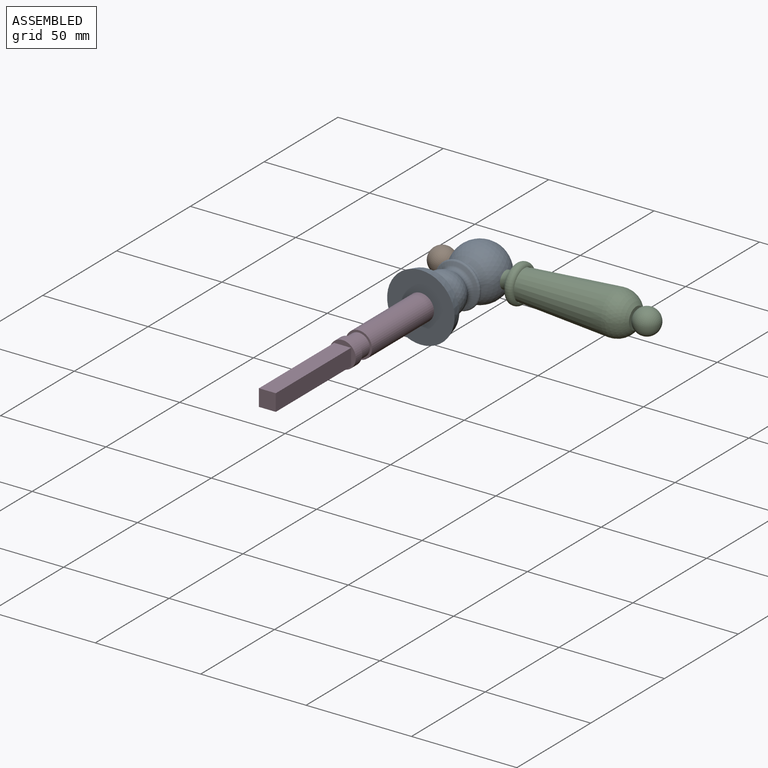
[diagram: assembled view]
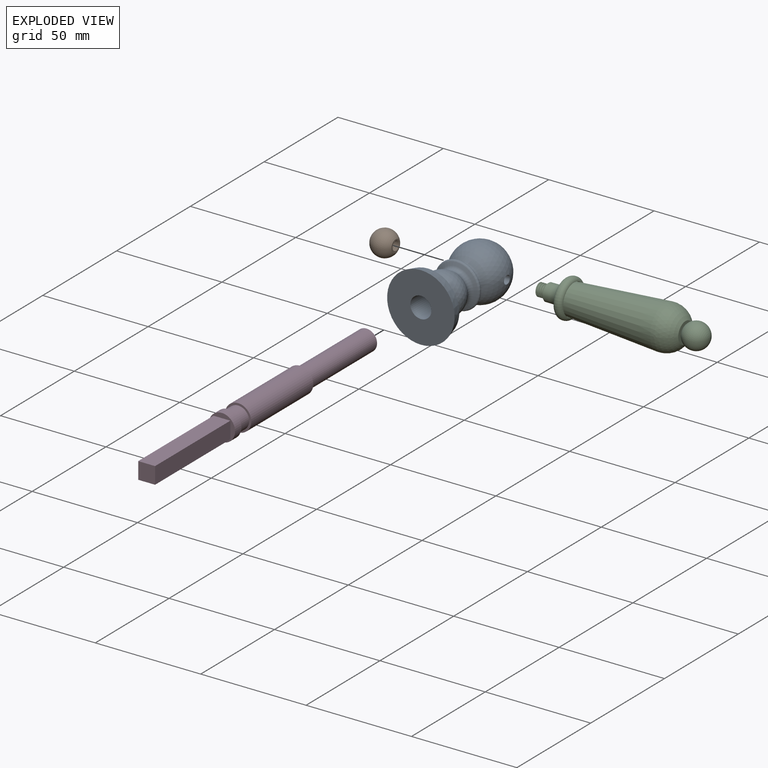
[diagram: exploded view]
GUIDED TOUR — MATED ASSEMBLY WITH SUBASSEMBLIES (Onshape document 96c283c17bb7d6d4dfa393ef, AutoMate assembly 96c283c17bb7d6d4dfa393ef_83c5de9c56ec6fb11143a300_c1f0d941cd1d08f84e31cca8_default)

This assembly has 7 component occurrences arranged in 4 top-level units: 3 individual components plus 1 subassembly (S0). The tour has two levels: first the top level, where each subassembly is treated as one rigid unit; then each subassembly is toured internally in its own section (nesting deeper than one subassembly level is flattened into its subassembly's section).

Components are labeled P0..P6 across the whole record; subassembly units are labeled S0..S0. A mate is a constraint between two units; its type names the relative motion it leaves free:
  FASTENED — locks the two components together rigidly (no relative motion).
Axis/direction vectors are unit vectors and 'through' points are millimeter coordinates, both in the assembly's world frame.

TOP-LEVEL MATES (between units; each subassembly's internal mates are listed in its own section)
  1. FASTENED "Fastened 4": P0 <-> P1, direction (1.000, 0.000, 0.000) through (-12.85, 82.00, 0.00) mm
  2. FASTENED "Fastened 2": P4 <-> P0, direction (0.000, 1.000, 0.000) through (0.00, 42.00, 0.00) mm
  3. FASTENED "Fastened 1": S0 <-> P0, direction (-1.000, 0.000, 0.000) through (12.85, 82.00, 0.00) mm

TOP-LEVEL ASSEMBLY ORDER
  1. P0 — the base component [order heuristic]
  2. S0 — core [order heuristic]
  3. P4 — core [order heuristic]
  4. P1 [order verified]
Order-tag legend:
  [order verified] — this step's position reverses a verified removal order: the component was checked to insert without passing through the ones already placed.
  [order heuristic] — the first 3 components form the assembly's core: parts whose collision-free extraction could not be verified, listed in mate-graph order.

Of the 7 component occurrences, 1 carries the full construction recipe — the FeatureScript program that regenerates the part's solid from scratch; the rest are supplied as boundary geometry only. Each toured unit is shown spotlighted twice — assembled, then exploded with a leader line back to its socket (green = recipe-attached component, orange = geometry-only, blue = subassembly unit; the rest desaturated gray).
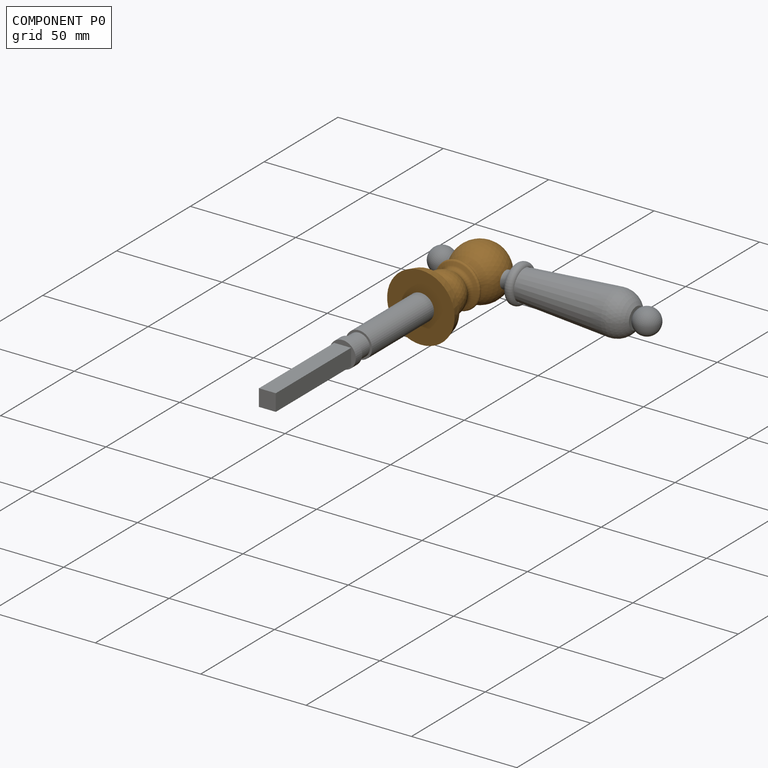
[diagram: component P0 — assembled]
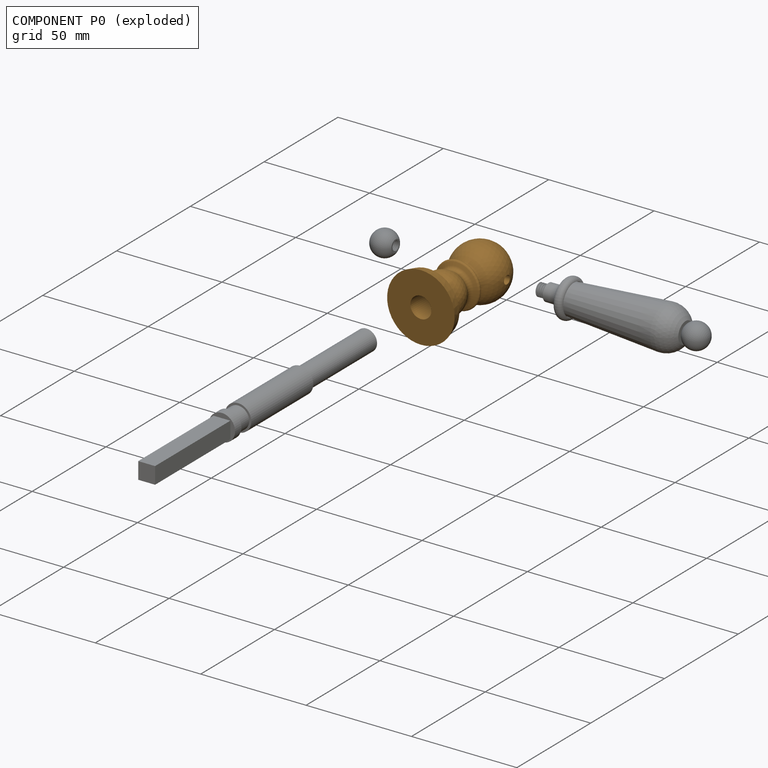
[diagram: component P0 — exploded]
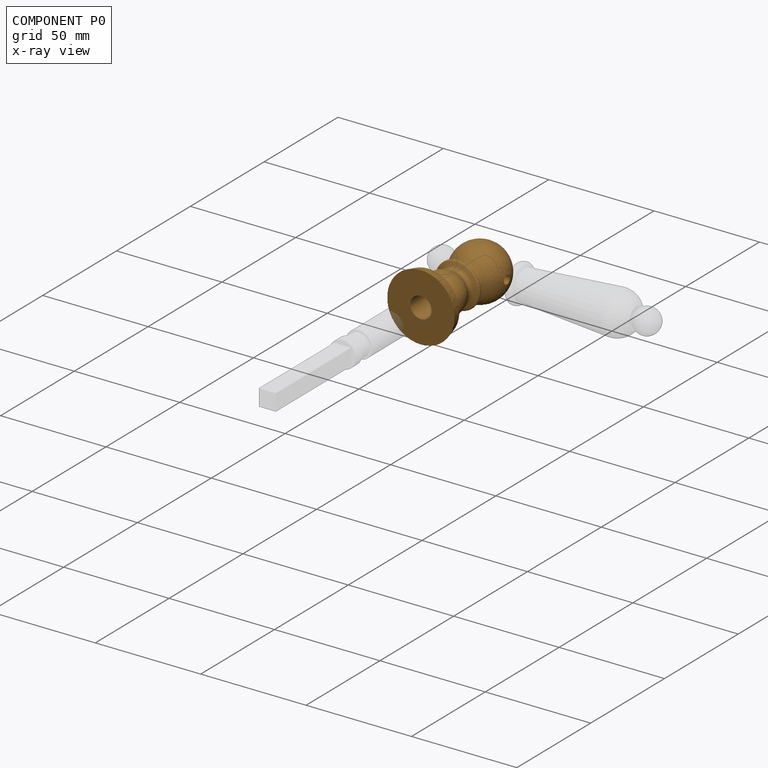
[diagram: component P0 — x-ray view]
COMPONENT P0 — geometry summary (no construction recipe available for this part):
  bounding box: 54.0 x 32.0 x 32.0 mm
  B-rep topology: 1 solid, 17 faces, 72 edges
  volume: 14979 mm^3 (27% of its bounding box)
  symmetry: 2-fold rotationally symmetric about the x axis; mirror-symmetric across its y mid-plane, z mid-plane
Held by: FASTENED mate "Fastened 4" to P1; FASTENED mate "Fastened 2" to P4; FASTENED mate "Fastened 1" to P2.
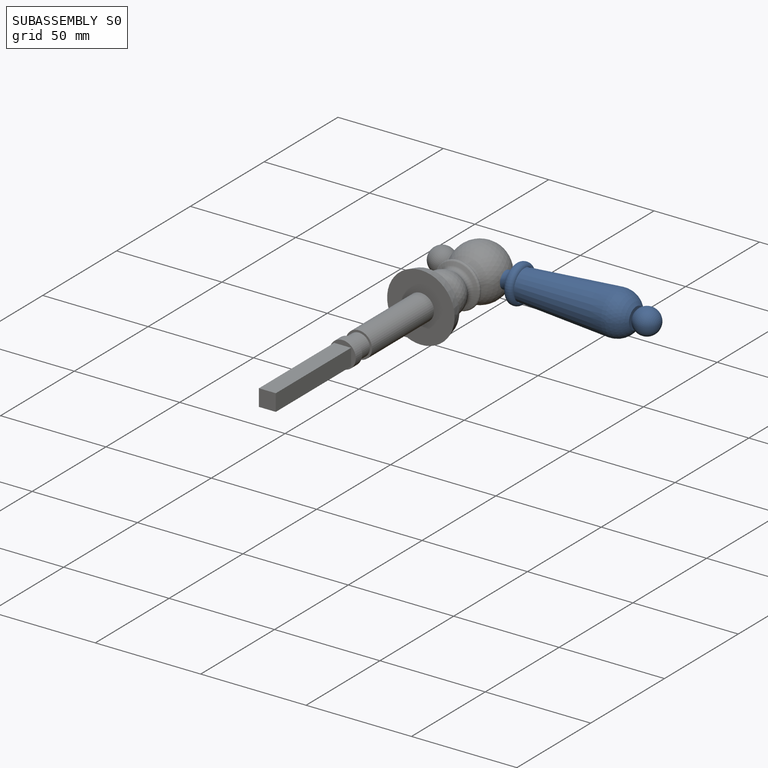
[diagram: subassembly S0 — assembled]
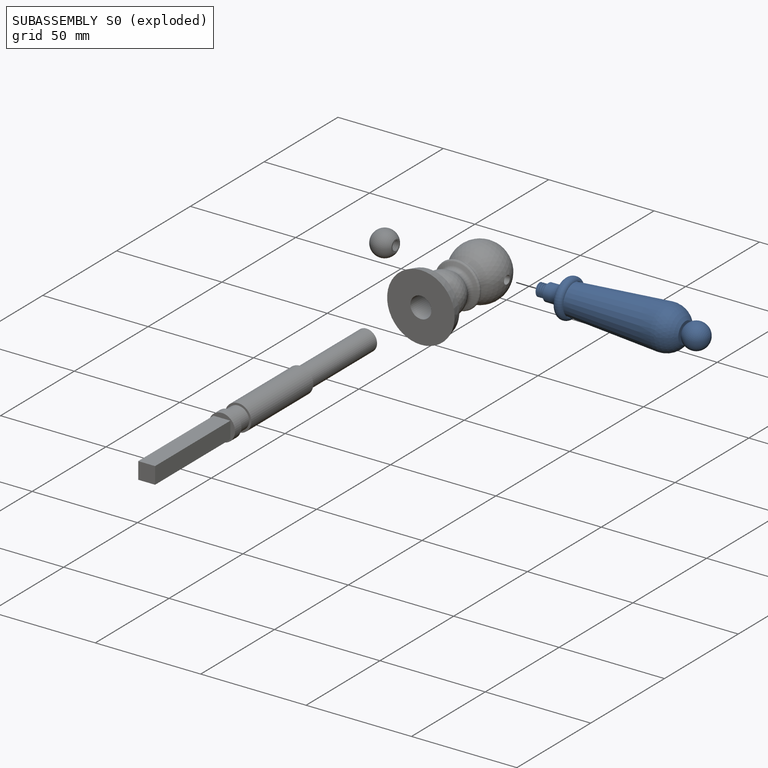
[diagram: subassembly S0 — exploded]
SUBASSEMBLY S0 — 4 components (P2, P3, P5, P6), of which 1 recipe-attached; toured below.
Held by: FASTENED mate "Fastened 1" to P0.
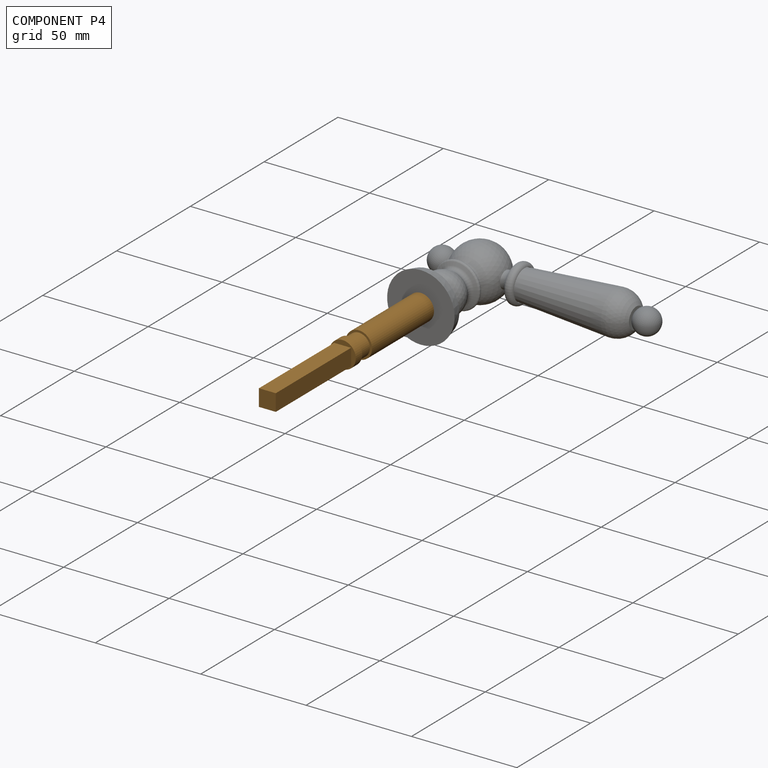
[diagram: component P4 — assembled]
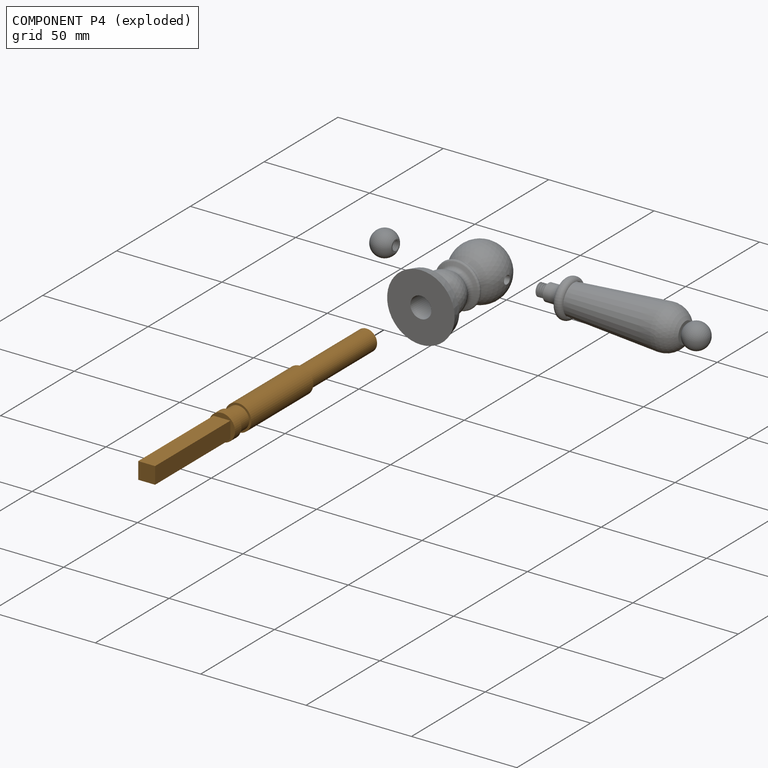
[diagram: component P4 — exploded]
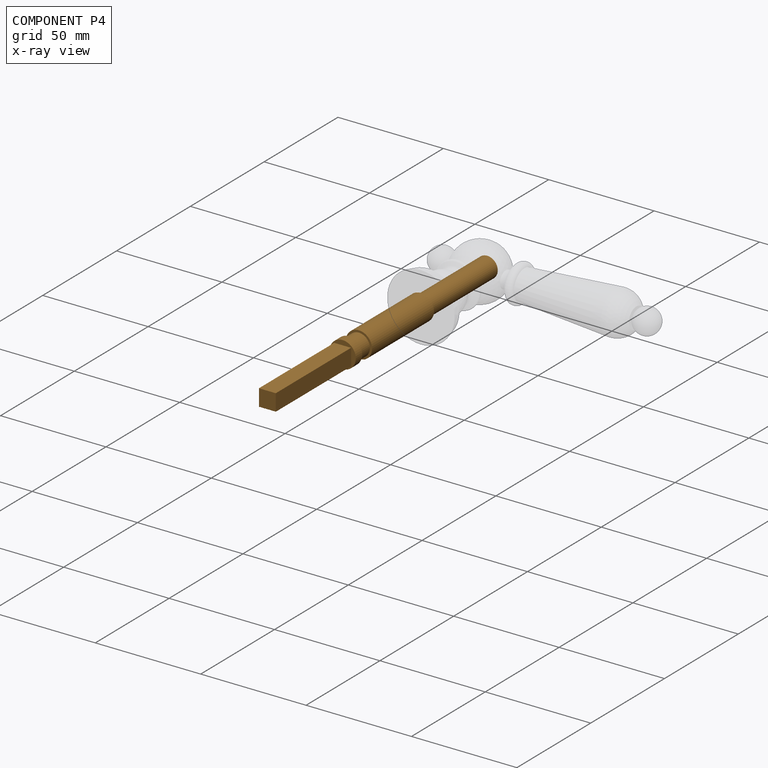
[diagram: component P4 — x-ray view]
COMPONENT P4 — geometry summary (no construction recipe available for this part):
  bounding box: 149.0 x 12.5 x 12.5 mm
  B-rep topology: 1 solid, 14 faces, 48 edges
  volume: 13060 mm^3 (56% of its bounding box)
  symmetry: 4-fold rotationally symmetric about the x axis; mirror-symmetric across its y mid-plane, z mid-plane
Held by: FASTENED mate "Fastened 2" to P0.
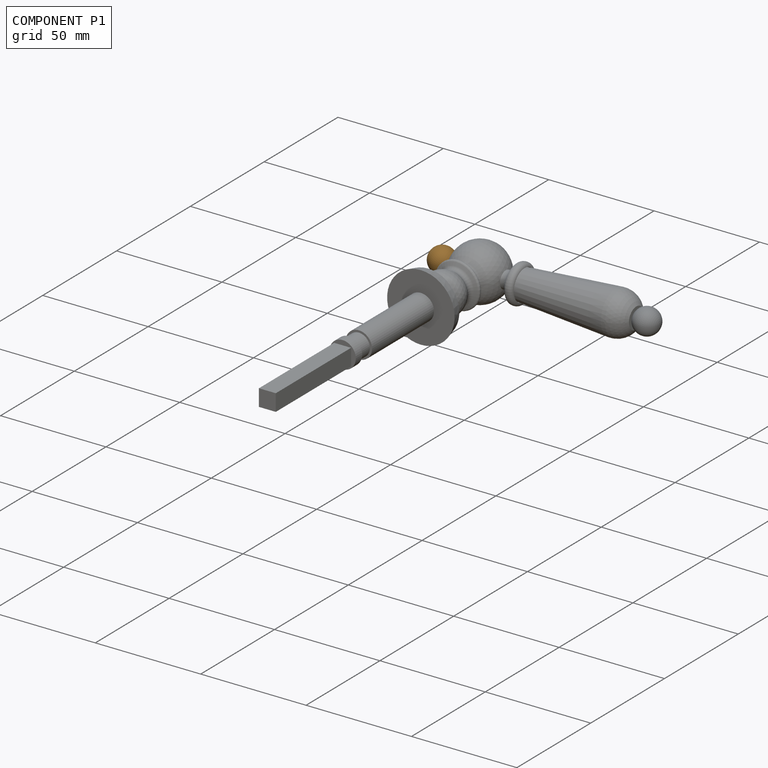
[diagram: component P1 — assembled]
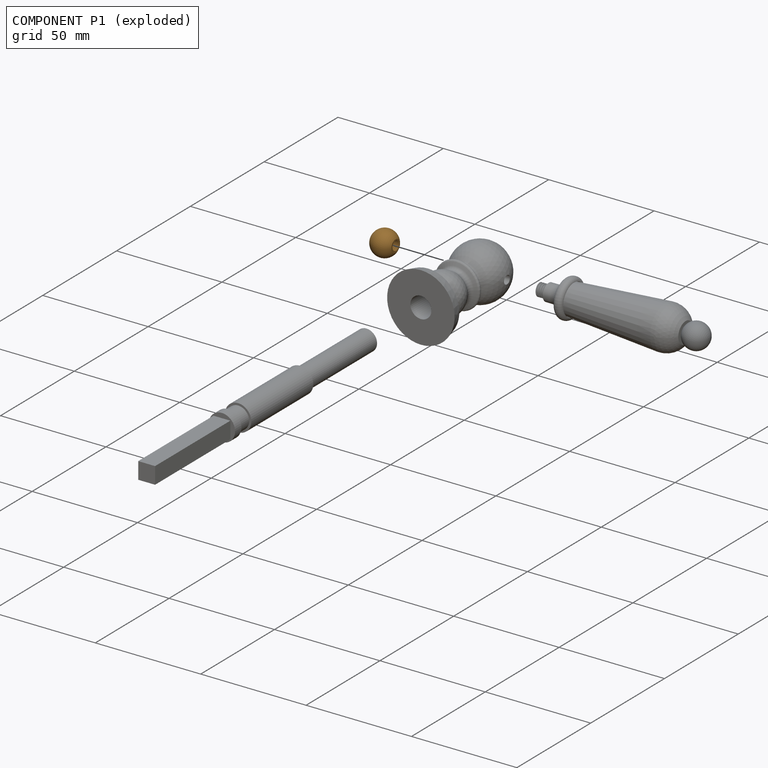
[diagram: component P1 — exploded]
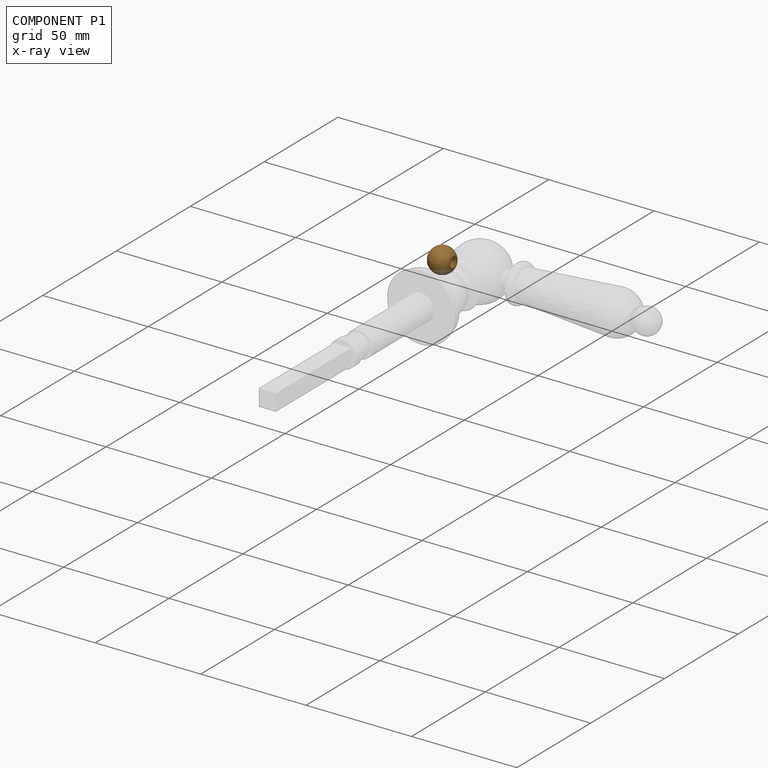
[diagram: component P1 — x-ray view]
COMPONENT P1 — geometry summary (no construction recipe available for this part):
  bounding box: 12.2 x 12.2 x 11.8 mm
  B-rep topology: 1 solid, 8 faces, 34 edges
  volume: 751 mm^3 (43% of its bounding box)
  symmetry: revolution-symmetric about the y axis through its bounding-box center
Held by: FASTENED mate "Fastened 4" to P0.
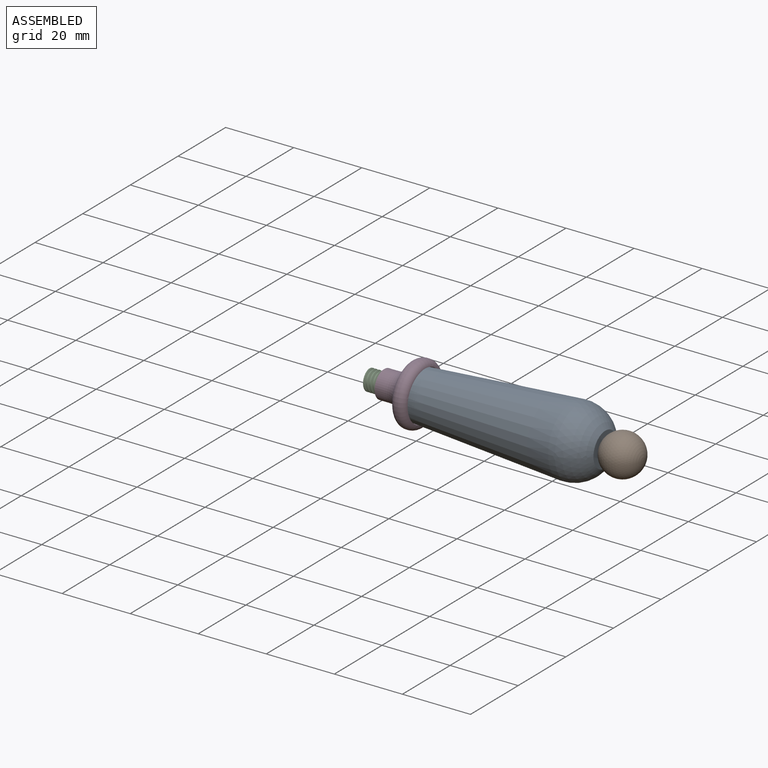
[diagram: subassembly S0 — assembled view]
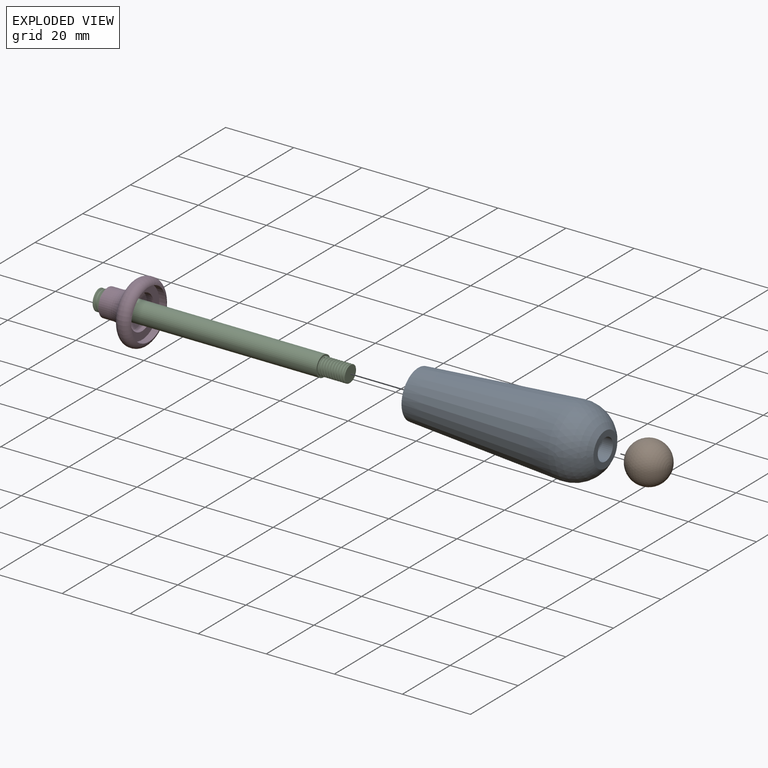
[diagram: subassembly S0 — exploded view]
SUBASSEMBLY S0 TOUR — 4 components, shown here in isolation at its own camera.

INTERNAL MATES
  1. FASTENED "Fastened 4": P5 <-> P3, direction (1.000, 0.000, 0.000) through (70.85, 82.00, 0.00) mm
  2. FASTENED "Fastened 1": P6 <-> P2, direction (1.000, 0.000, 0.000) through (19.21, 82.00, 0.00) mm
  3. FASTENED "Fastened 2": P3 <-> P2, direction (-1.000, 0.000, 0.000) through (74.06, 82.00, 0.00) mm
  4. FASTENED "Fastened 4": P5 <-> P3, direction (1.000, 0.000, 0.000) through (70.85, 82.00, 0.00) mm
  5. FASTENED "Fastened 2": P3 <-> P2, direction (-1.000, 0.000, 0.000) through (74.06, 82.00, 0.00) mm
  6. FASTENED "Fastened 1": P6 <-> P2, direction (1.000, 0.000, 0.000) through (19.21, 82.00, 0.00) mm

ASSEMBLY ORDER (within the subassembly)
  1. P2 — the base component [order heuristic]
  2. P3 [order heuristic]
  3. P6 [order heuristic]
  4. P5 [order heuristic]
Order-tag legend:
  [order heuristic] — this assembly is geometrically interlocked (no collision-free removal order exists), so components are listed in mate-graph order; insertion feasibility is not verified.
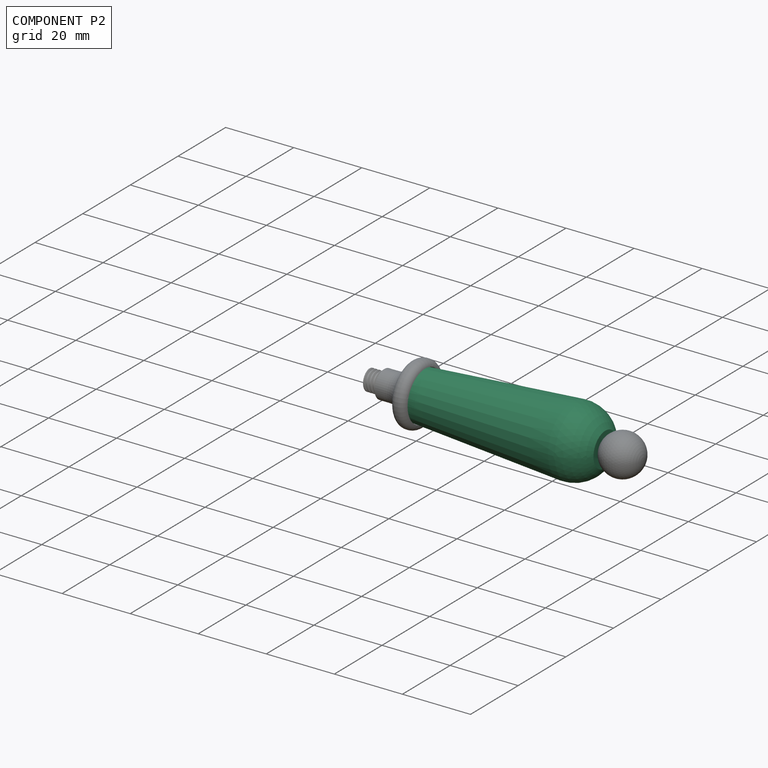
[diagram: component P2 — assembled]
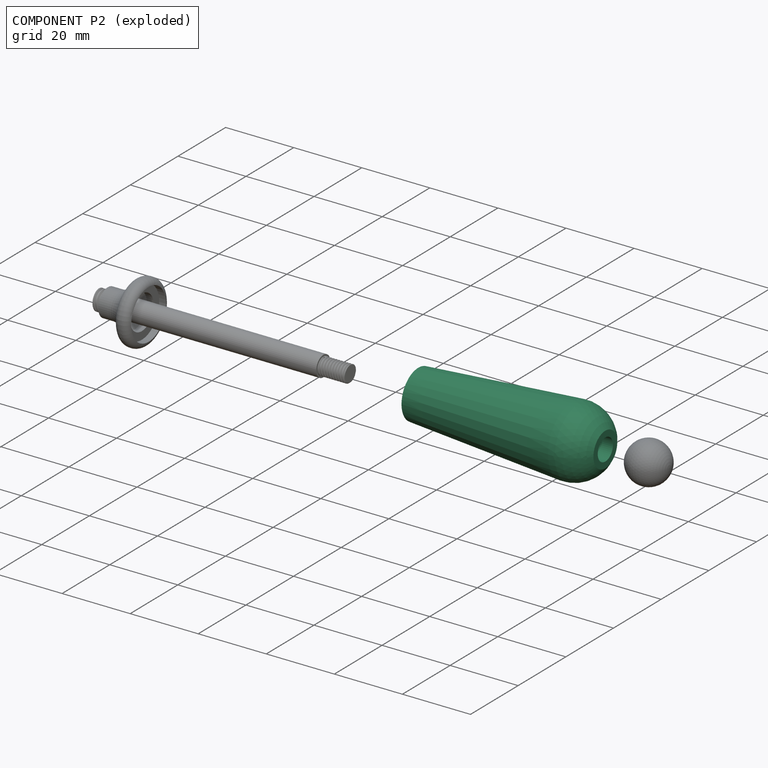
[diagram: component P2 — exploded]
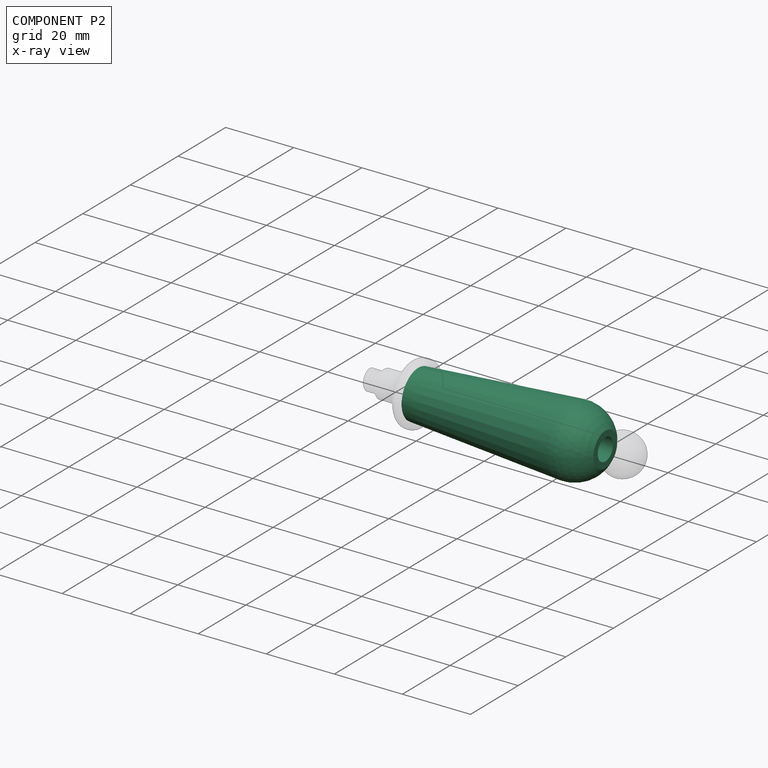
[diagram: component P2 — x-ray view]
COMPONENT P2 — recipe-attached (CADFS 00741744, mesh-verified: the recipe's output STEP matches this component's geometry to below the mesh-comparison resolution (tessellation chordal tolerance ~0.0932 mm)).
Held by: FASTENED mate "Fastened 1" to P6; FASTENED mate "Fastened 2" to P3; FASTENED mate "Fastened 2" to P3; FASTENED mate "Fastened 1" to P6.
Construction recipe (FeatureScript — the CAD program that rebuilds this solid; sketch coordinates are in the units given by the * unit suffixes, e.g. mm):

FeatureScript 1511;
import(path : "onshape/std/geometry.fs", version : "1511.0");
import(path : "onshape/std/common.fs", version : "1511.0");
const mm = millimeter;
const VERTEX = EntityType.VERTEX;
const EDGE = EntityType.EDGE;
const FACE = EntityType.FACE;
const BODY = EntityType.BODY;
function v(x, y){return vector(x, y);}
function OD(order){return orderDisambiguation(order);}
function OSD(set){return originalSetDisambiguation(set);}
function TD(topology){return topologyDisambiguation(topology);}
function TDD(query){return trueDependencyDisambiguation(query);}
function sQuery(a, b, c) {return sketchEntityQuery(a, b, c);}

annotation { "Feature Type Name" : "Feature", "Feature Type Description" : "" }
export const myFeature = defineFeature(function(context is Context, id is Id, definition is map)
    precondition{}
    {
        {
            var Q0;
            Q0=qCreatedBy(makeId("Front.planeOp"),FACE);
            var sketch = newSketch(context, id + "F0", { "sketchPlane" : qUnion([Q0])});
            skLineSegment(sketch, "E0", {"start": v(0, -6) * mm, "end": v(0, 57.85) * mm, "construction": true});
            skLineSegment(sketch, "E1", {"start": v(7, 0) * mm, "end": v(10.22, 45.32) * mm});
            skArc(sketch, "E2", {"start": v(10.22, 45.32) * mm, "mid": v(9.02, 50.92) * mm, "end": v(5, 55) * mm});
            skLineSegment(sketch, "E3", {"start": v(7, 0) * mm, "end": v(3.2, 0) * mm});
            skLineSegment(sketch, "E4", {"start": v(3.2, 0) * mm, "end": v(3.2, 55) * mm});
            skLineSegment(sketch, "E5", {"start": v(3.2, 55) * mm, "end": v(5, 55) * mm});
            skSolve(sketch);
        }
        {
            var Q0;
            Q0=makeQuery(id+"F0.imprint","IMPRINT",FACE,{"disambiguationData":[TD([[makeQuery(id+"F0.imprint","IMPRINT",EDGE,{"derivedFrom":sQuery(id+"F0.wireOp",EDGE,"E1")}),1.0]])]});
            var Q1;
            Q1=sQuery(id+"F0.wireOp",EDGE,"E0");
            revolve(context, id + "F1", {"entities" : qUnion([Q0]), "axis" : qUnion([Q1]), "revolveType" : RevolveType.FULL});
        }
    });
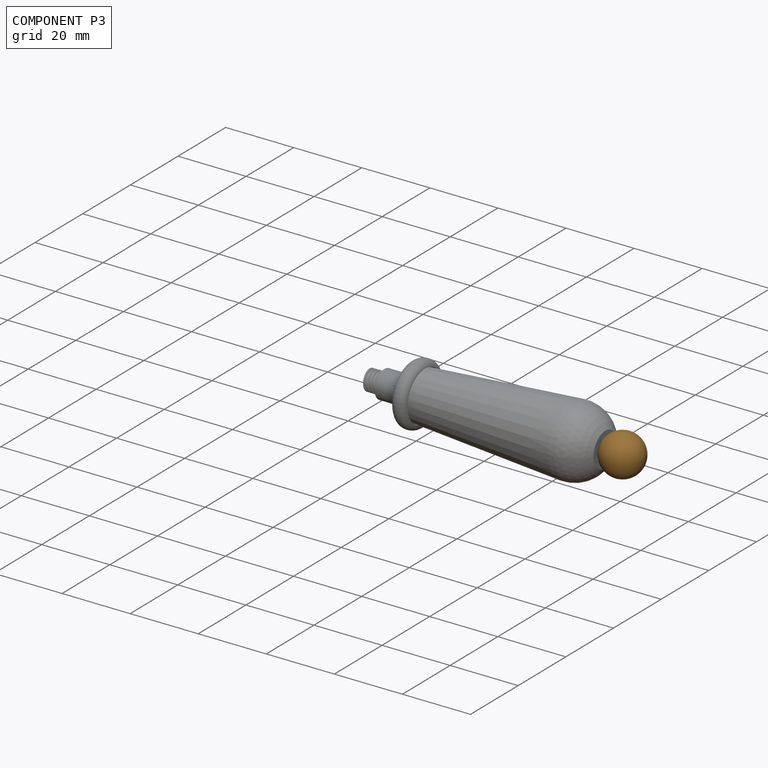
[diagram: component P3 — assembled]
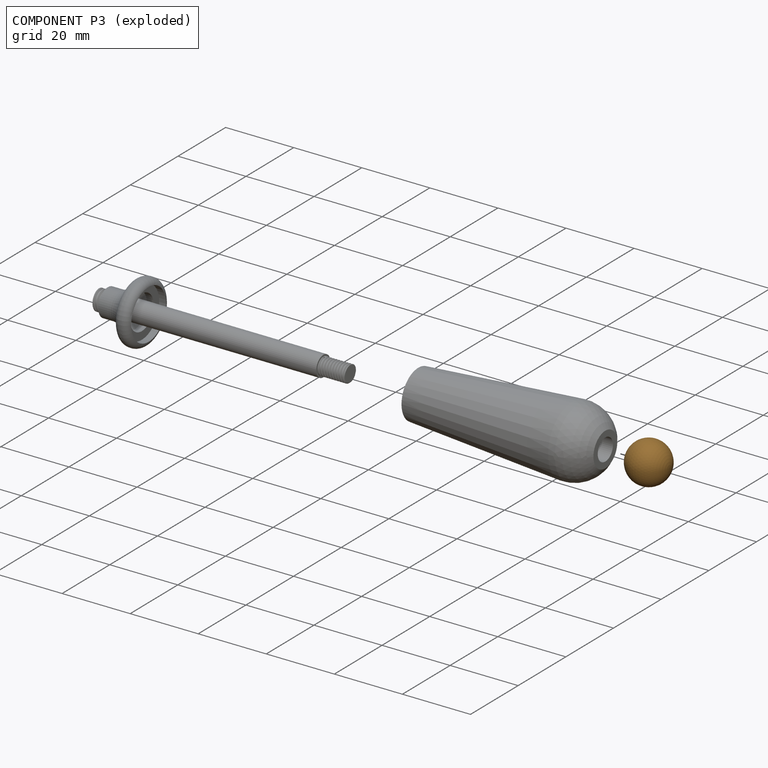
[diagram: component P3 — exploded]
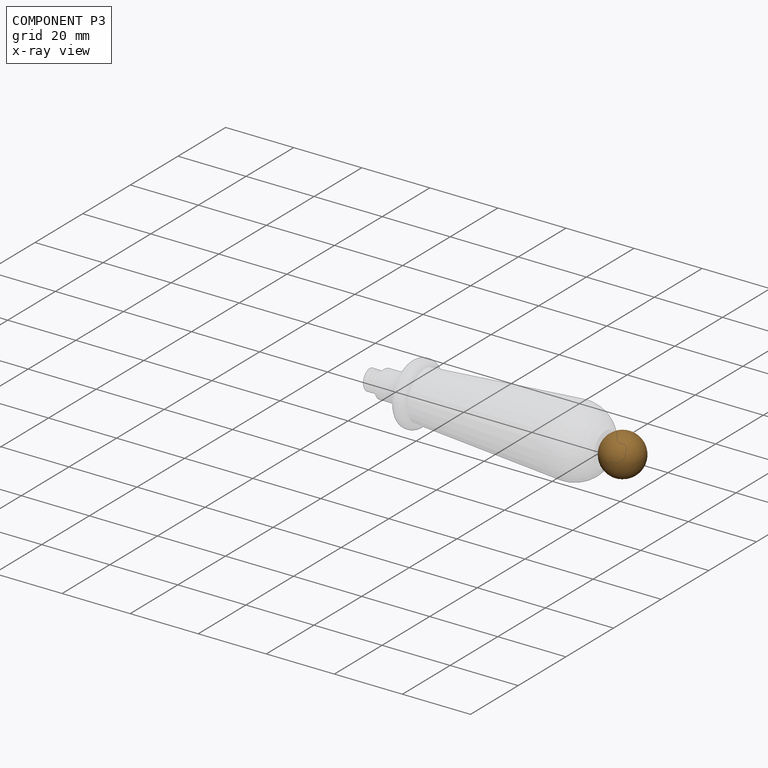
[diagram: component P3 — x-ray view]
COMPONENT P3 — geometry summary (no construction recipe available for this part):
  bounding box: 12.2 x 12.2 x 11.8 mm
  B-rep topology: 1 solid, 8 faces, 34 edges
  volume: 751 mm^3 (43% of its bounding box)
  symmetry: revolution-symmetric about the y axis through its bounding-box center
Held by: FASTENED mate "Fastened 4" to P5; FASTENED mate "Fastened 2" to P2; FASTENED mate "Fastened 4" to P5; FASTENED mate "Fastened 2" to P2.
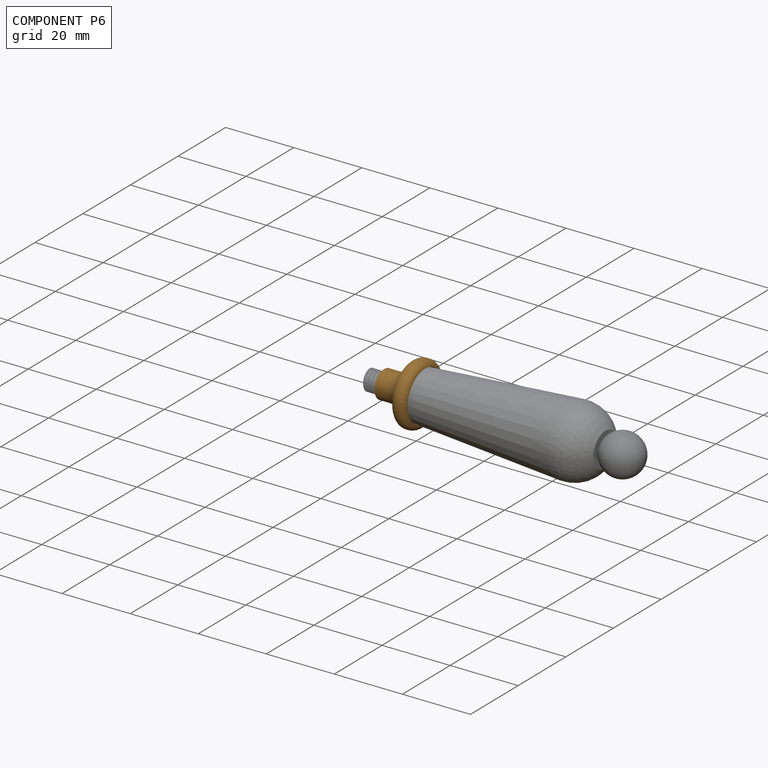
[diagram: component P6 — assembled]
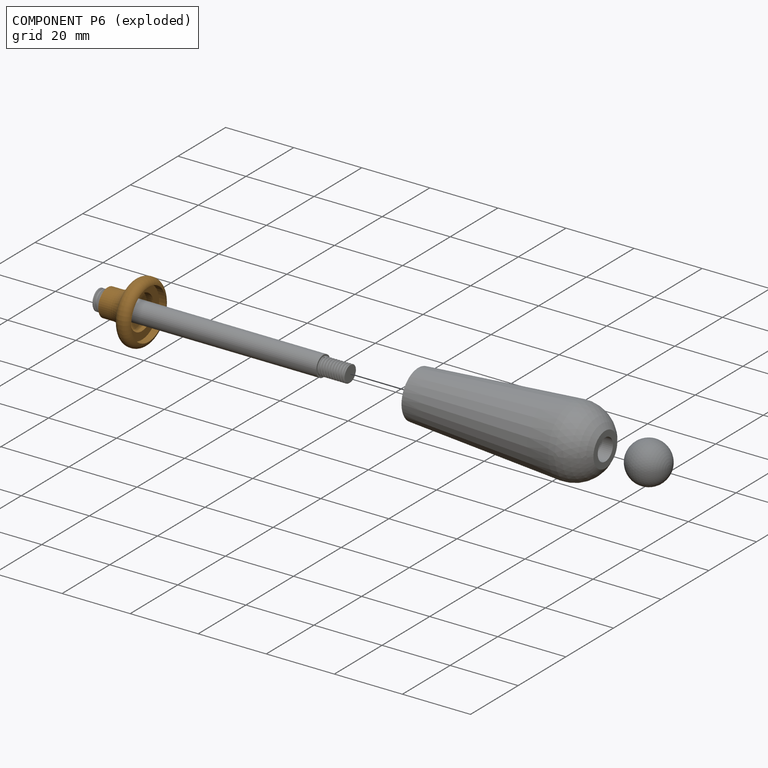
[diagram: component P6 — exploded]
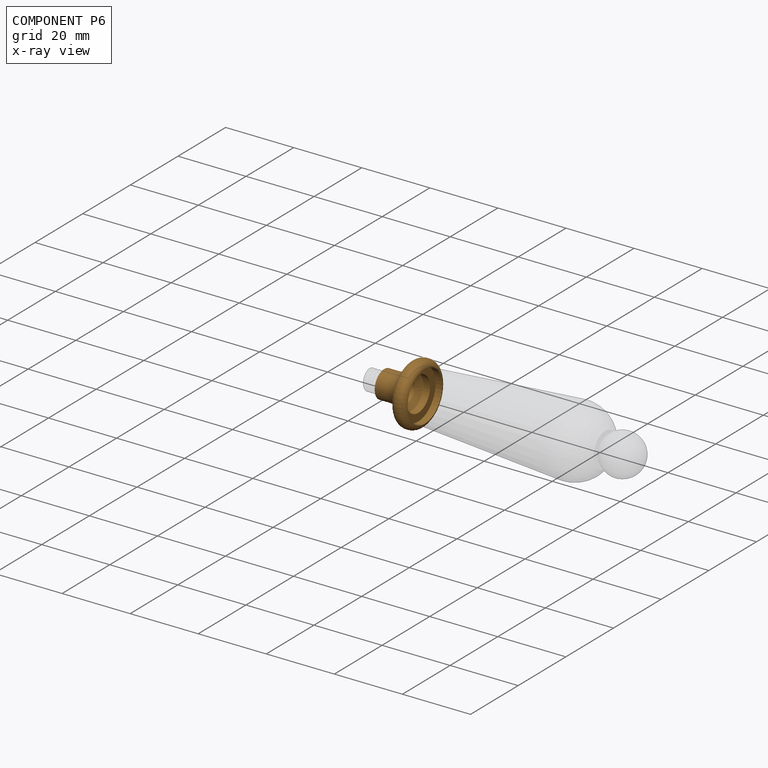
[diagram: component P6 — x-ray view]
COMPONENT P6 — geometry summary (no construction recipe available for this part):
  bounding box: 19.5 x 19.5 x 12.0 mm
  B-rep topology: 1 solid, 11 faces, 40 edges
  volume: 761 mm^3 (17% of its bounding box)
  symmetry: revolution-symmetric about the z axis through its bounding-box center; mirror-symmetric across its x mid-plane, y mid-plane
Held by: FASTENED mate "Fastened 1" to P2; FASTENED mate "Fastened 1" to P2.
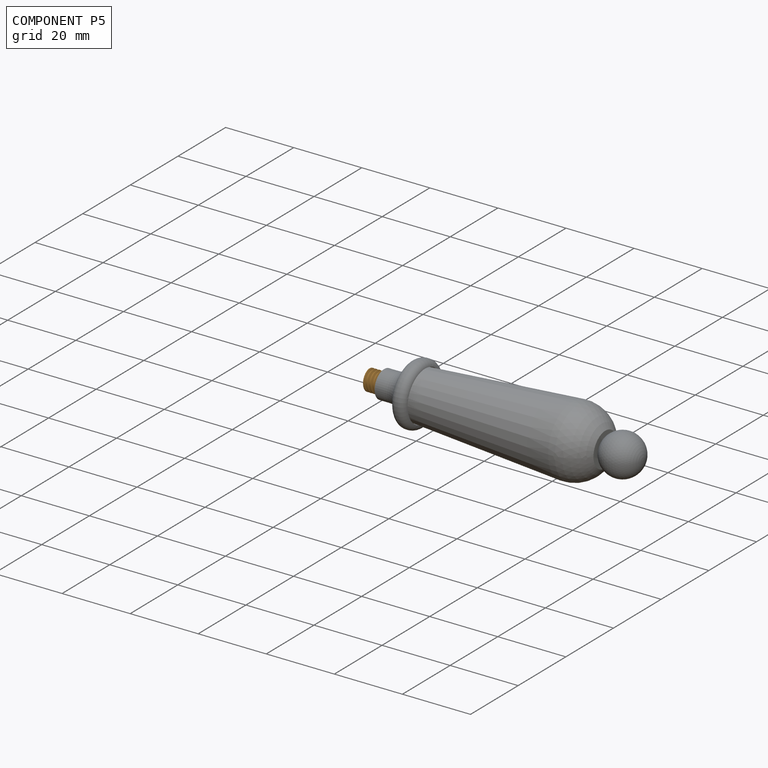
[diagram: component P5 — assembled]
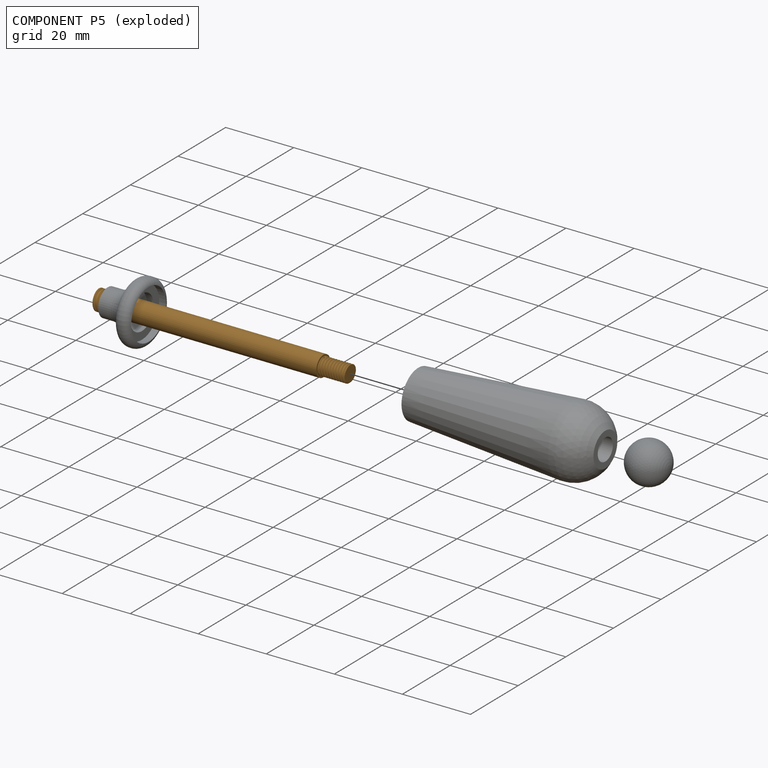
[diagram: component P5 — exploded]
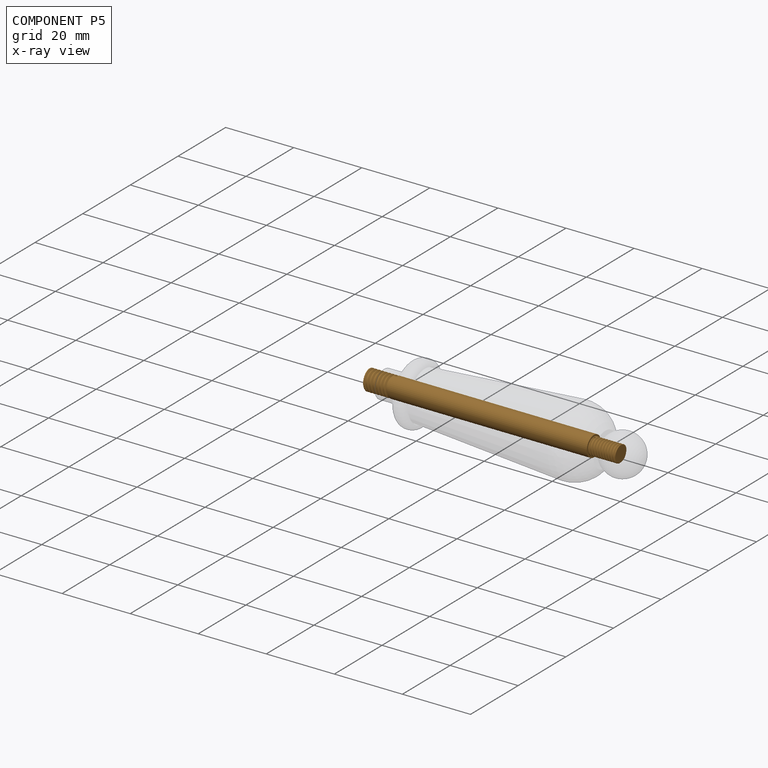
[diagram: component P5 — x-ray view]
COMPONENT P5 — geometry summary (no construction recipe available for this part):
  bounding box: 75.1 x 7.1 x 6.2 mm
  B-rep topology: 1 solid, 15 faces, 58 edges
  volume: 1987 mm^3 (60% of its bounding box)
  symmetry: revolution-symmetric about the z axis through its bounding-box center; mirror-symmetric across its x mid-plane, y mid-plane
Held by: FASTENED mate "Fastened 4" to P3; FASTENED mate "Fastened 4" to P3.
PROVENANCE & LICENSES
Assembly (occurrences, transforms, mates, per-part STEP geometry): AutoMate dataset, Zenodo record 7776208, CC0.
Construction recipes: CADFS (HuggingFace VladPyatov/CADFS, CC-BY-4.0, layered over the ABC dataset), FeatureScript reconstruction programs keyed by ABC model id.
Join: ABC meta listings map ABC model id -> Onshape documentId; within a shared document, parts are matched by geometric signature (bounding-box dims + volume at 0.1% relative tolerance, exact B-rep face/solid counts).
Verification: 1 of this assembly's 7 components carries a recipe attachment, and every attachment is mesh-verified: the CADFS STEP and the AutoMate member STEP were compared as meshes in their shared local frame (symmetric sampled-point-to-mesh distance); worst across the 1 attachment: below the mesh-comparison resolution (tessellation chordal tolerance ~0.0932 mm) on a 62 mm part.
Renders: orthographic iso camera (az 35 / el 25); the floor grid conveys scale (grid pitch printed in each image; no ruler). In the exploded view each component is displaced by its stored offset vector: the offsets alone carry the explosion direction (mate normal/axis signs are not orientation cues and do not encode it), and separation distances are assigned per mate-chain, not proportionally to assembly-order depth.
